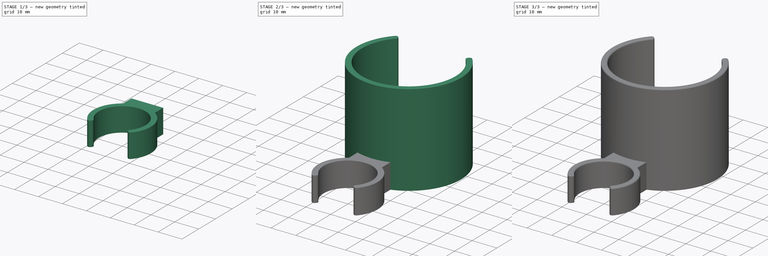
[diagram: build sequence overview — one tinted view per stage of 3, left to right]
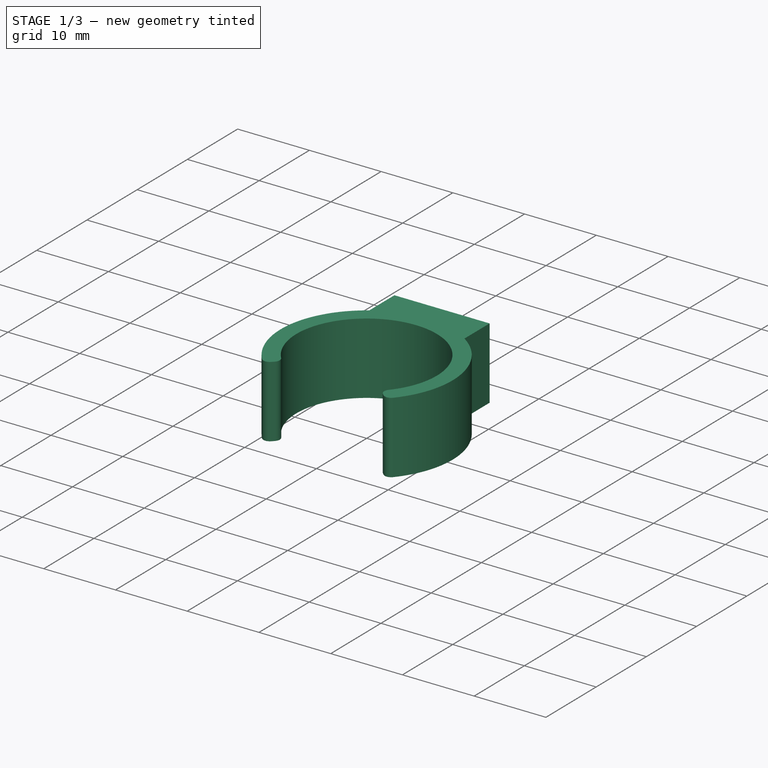
[diagram: stage 1 of 3 — iso view after this stage's code; geometry added in this stage tinted green]
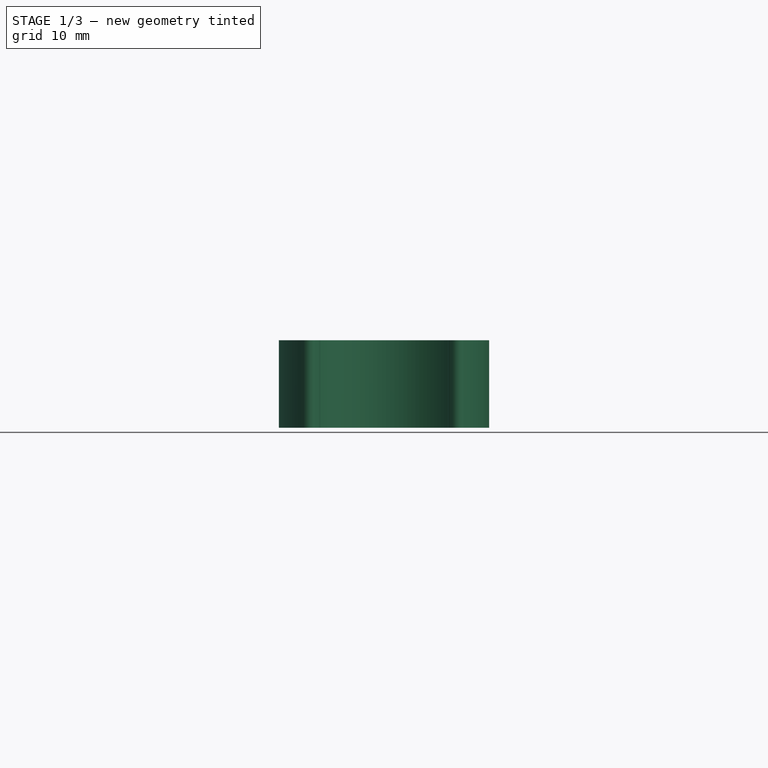
[diagram: stage 1 of 3 — front view after this stage's code; geometry added in this stage tinted green]
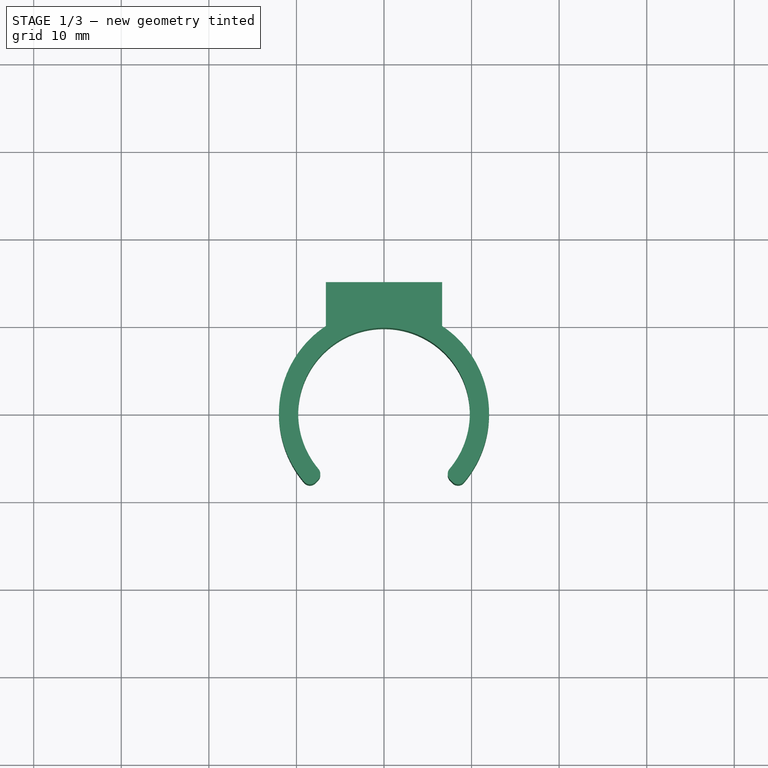
[diagram: stage 1 of 3 — top view after this stage's code; geometry added in this stage tinted green]
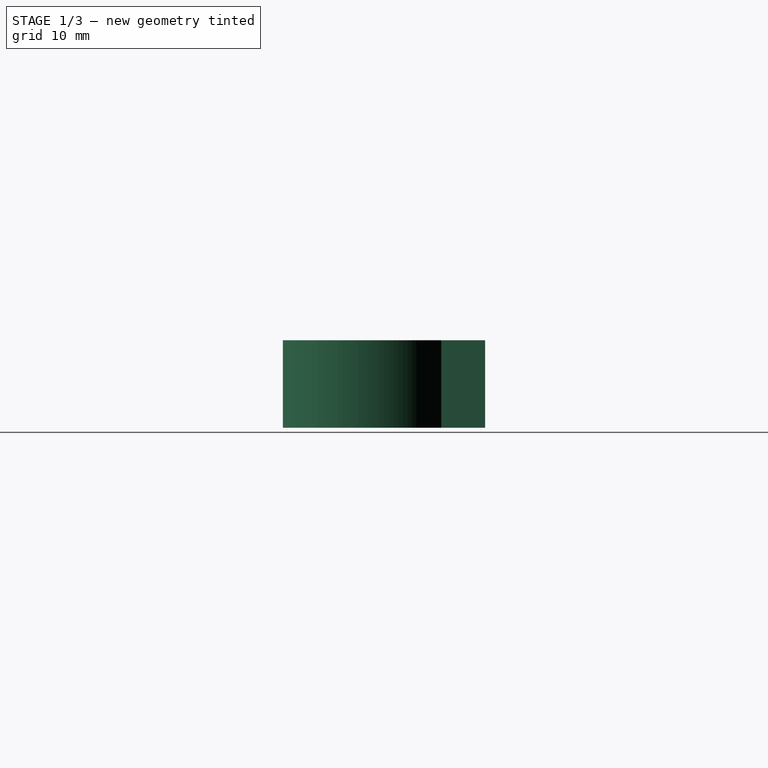
[diagram: stage 1 of 3 — right view after this stage's code; geometry added in this stage tinted green]
FCSTD DOCUMENT  (FreeCAD 0.19R24276 (Git))
Label: Halter1_mitRundungen
License: All rights reserved
LicenseURL: http://en.wikipedia.org/wiki/All_rights_reserved
objects: Sketcher::SketchObject×4, PartDesign::Pad×4, PartDesign::Fillet×1, PartDesign::Body×1
note: 15 computed .brp shape members not serialized (recipe doc carries the construction recipe); baked Part::Feature solids carry a one-line shape summary decoded from their .brp

FEATURE [Sketcher::SketchObject] Sketch
  FullyConstrained = true
  MapMode = 5
  Support = -> [XY_Plane]
  sketch-geometry (10):
    g0: LineSegment StartX=0 StartY=0 StartZ=0 EndX=-8.48528 EndY=-8.48528 EndZ=0
    g1: LineSegment StartX=0 StartY=0 StartZ=0 EndX=8.48528 EndY=-8.48528 EndZ=0
    g2: ArcOfCircle CenterX=0 CenterY=0 CenterZ=0 NormalX=0 NormalY=0 NormalZ=1 AngleXU=0 Radius=9.8 StartAngle=5.582 EndAngle=10.126
    g3: ArcOfCircle CenterX=0 CenterY=0 CenterZ=0 NormalX=0 NormalY=0 NormalZ=1 AngleXU=0 Radius=12 StartAngle=5.57896 EndAngle=10.129
    g4: LineSegment StartX=-7.82304 StartY=-7.82304 StartZ=0 EndX=-7.53923 EndY=-7.53923 EndZ=0
    g5: LineSegment StartX=7.53923 StartY=-7.53923 StartZ=0 EndX=7.82304 EndY=-7.82304 EndZ=0
    g6: ArcOfCircle CenterX=8.45944 CenterY=-7.18665 CenterZ=0 NormalX=0 NormalY=0 NormalZ=1 AngleXU=0 Radius=0.9 StartAngle=3.92699 EndAngle=5.57896
    g7: ArcOfCircle CenterX=8.17563 CenterY=-6.90283 CenterZ=0 NormalX=0 NormalY=0 NormalZ=1 AngleXU=0 Radius=0.9 StartAngle=2.44041 EndAngle=3.92699
    g8: ArcOfCircle CenterX=-8.17563 CenterY=-6.90283 CenterZ=0 NormalX=0 NormalY=0 NormalZ=1 AngleXU=0 Radius=0.9 StartAngle=5.49779 EndAngle=6.98437
    g9: ArcOfCircle CenterX=-8.45944 CenterY=-7.18665 CenterZ=0 NormalX=0 NormalY=0 NormalZ=1 AngleXU=0 Radius=0.9 StartAngle=3.84582 EndAngle=5.49779
  constraints (26):
    c: Distance(g1) = 12
    c: Distance(g0) = 12
    c: Angle(g0,g1) = 1.5708
    c: Angle(g1,g-1) = 0.785398
    c: Radius(g2) = 9.8
    c: Coincident(g3,g-1)
    c: Radius(g3) = 12
    c: Coincident(g2,g0)
    c: Coincident(g2,g1)
    c: Coincident(g2,g3)
    c: Tangent(g5,g6) = -1.5708
    c: Tangent(g3,g6) = -1.5708
    c: Tangent(g2,g7) = 1.5708
    c: Tangent(g5,g7) = -1.5708
    c: Radius(g6) = 0.9
    c: Equal(g6,g7)
    c: Perpendicular(g3,g5)
    c: PointOnObject(g5,g1)
    c: Tangent(g2,g8) = 1.5708
    c: Tangent(g4,g8) = -1.5708
    c: Tangent(g3,g9) = -1.5708
    c: Tangent(g4,g9) = -1.5708
    c: Equal(g7,g8)
    c: Equal(g7,g9)
    c: Perpendicular(g3,g4)
    c: PointOnObject(g4,g0)
FEATURE [PartDesign::Pad] Pad
  Direction = (1,1,1)
  Length = 10
  Length2 = 100
  Profile = -> Sketch
  Type = 0
FEATURE [Sketcher::SketchObject] Sketch001
  ExternalGeometry = -> [Pad]
  FullyConstrained = true
  MapMode = 5
  Support = -> [XY_Plane]
  sketch-geometry (5):
    g0: LineSegment StartX=-6.63325 StartY=15 StartZ=0 EndX=6.63325 EndY=15 EndZ=0
    g1: LineSegment StartX=6.63325 StartY=15 StartZ=0 EndX=6.63325 EndY=10 EndZ=0
    g2: LineSegment StartX=-6.63325 StartY=10 StartZ=0 EndX=-6.63325 EndY=15 EndZ=0
    g3: ArcOfCircle CenterX=0 CenterY=0 CenterZ=0 NormalX=0 NormalY=0 NormalZ=1 AngleXU=0 Radius=12 StartAngle=0.985111 EndAngle=2.15648
    g4: LineSegment StartX=0 StartY=12 StartZ=0 EndX=0 EndY=15 EndZ=0
  constraints (16):
    c: Coincident(g0,g1)
    c: Coincident(g2,g0)
    c: Horizontal(g0)
    c: Vertical(g1)
    c: Vertical(g2)
    c: DistanceY(g1,g1) = 5
    c: Coincident(g3,g-1)
    c: Coincident(g3,g2)
    c: Coincident(g3,g1)
    c: Equal(g1,g2)
    c: PointOnObject(g4,g3)
    c: PointOnObject(g4,g0)
    c: Vertical(g4)
    c: DistanceY(g4,g4) = 3
    c: PointOnObject(g4,g-2)
    c: PointOnObject(g4,g-3)
FEATURE [PartDesign::Pad] Pad001
  BaseFeature = -> Pad
  Direction = (1,1,1)
  Length = 10
  Length2 = 100
  Profile = -> Sketch001
  Type = 0
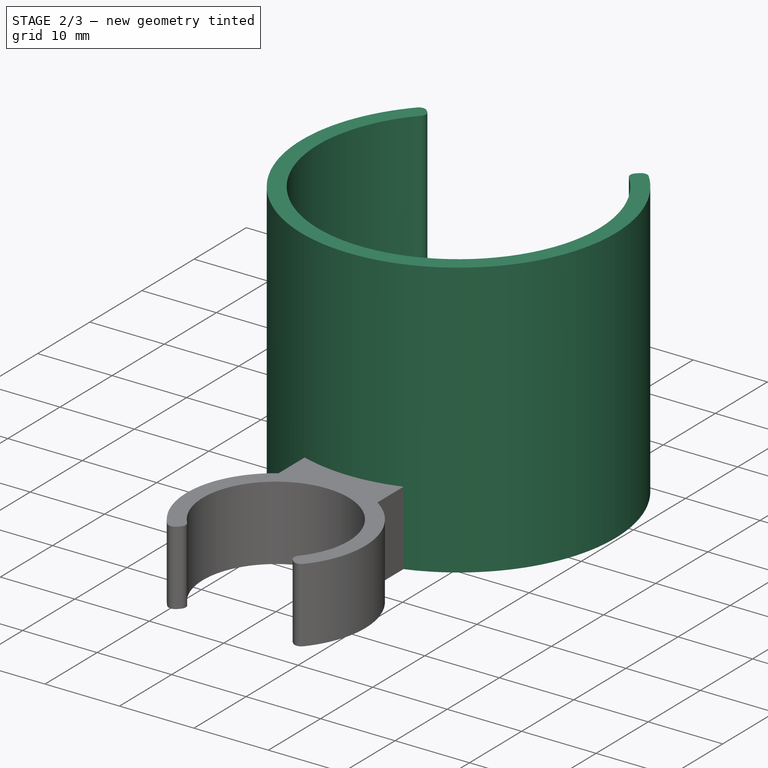
[diagram: stage 2 of 3 — iso view after this stage's code; geometry added in this stage tinted green]
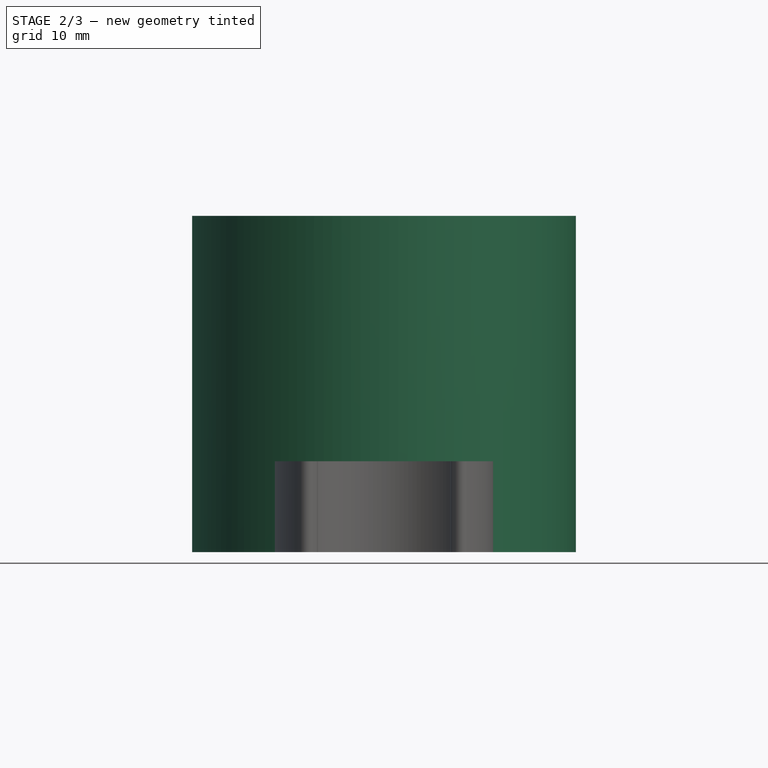
[diagram: stage 2 of 3 — front view after this stage's code; geometry added in this stage tinted green]
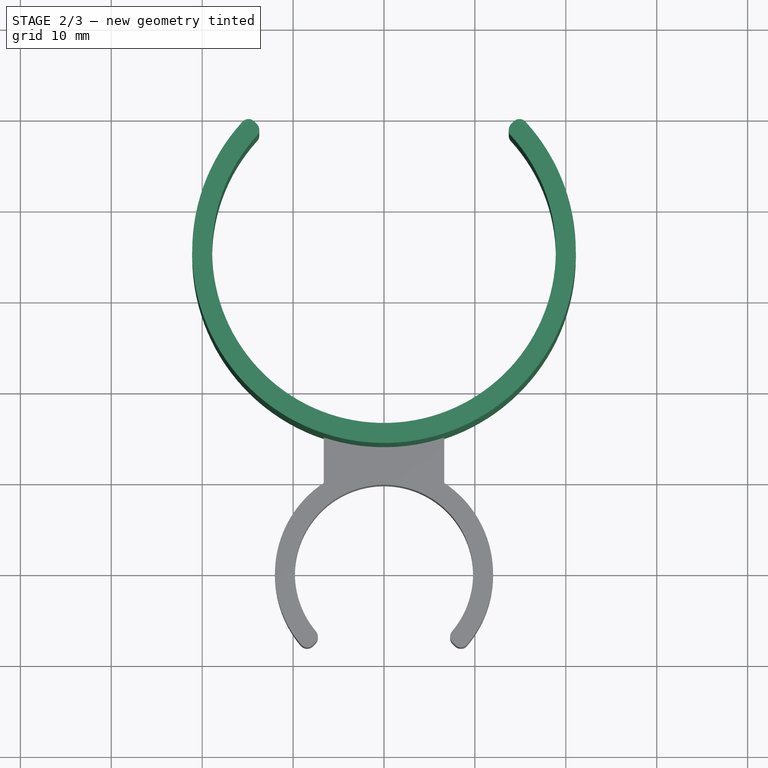
[diagram: stage 2 of 3 — top view after this stage's code; geometry added in this stage tinted green]
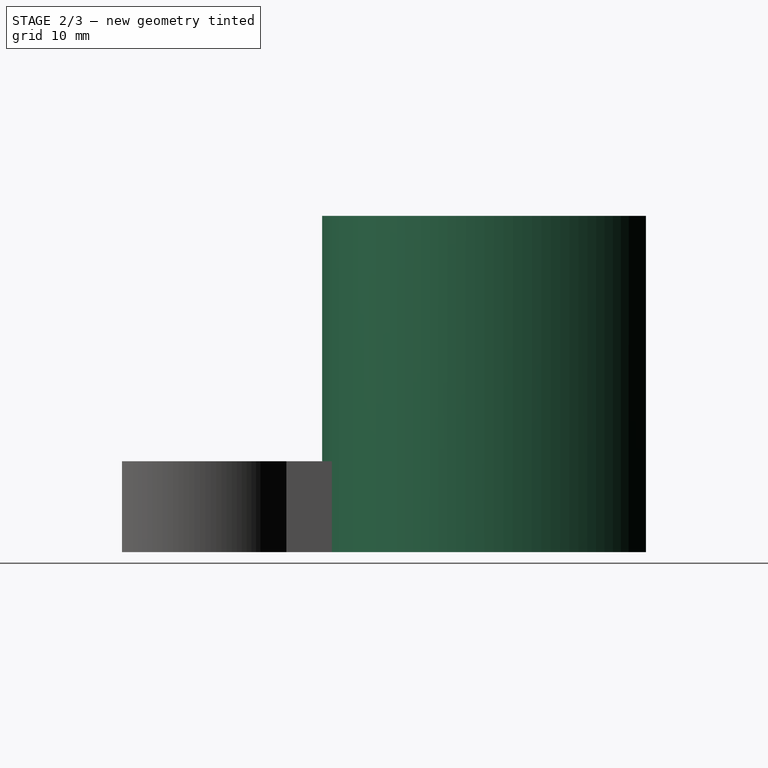
[diagram: stage 2 of 3 — right view after this stage's code; geometry added in this stage tinted green]
FEATURE [Sketcher::SketchObject] Sketch002
  ExternalGeometry = -> [Pad001]
  FullyConstrained = true
  MapMode = 5
  Support = -> [XY_Plane]
  expr: Constraints[6] = 42.2 / 2
  expr: Constraints[2] = 180 - 45
  sketch-geometry (10):
    g0: LineSegment StartX=0 StartY=35.0302 StartZ=0 EndX=14.92 EndY=49.9502 EndZ=0
    g1: LineSegment StartX=0 StartY=35.0302 StartZ=0 EndX=-14.92 EndY=49.9502 EndZ=0
    g2: ArcOfCircle CenterX=0 CenterY=35.0302 CenterZ=0 NormalX=0 NormalY=0 NormalZ=1 AngleXU=0 Radius=18.9 StartAngle=2.40166 EndAngle=7.02311
    g3: ArcOfCircle CenterX=0 CenterY=35.0302 CenterZ=0 NormalX=0 NormalY=0 NormalZ=1 AngleXU=0 Radius=21.1 StartAngle=2.40076 EndAngle=7.02401
    g4: LineSegment StartX=13.9862 StartY=49.0165 StartZ=0 EndX=14.2694 EndY=49.2996 EndZ=0
    g5: LineSegment StartX=-14.2694 StartY=49.2996 StartZ=0 EndX=-13.9862 EndY=49.0165 EndZ=0
    g6: ArcOfCircle CenterX=-14.9058 CenterY=48.6632 CenterZ=0 NormalX=0 NormalY=0 NormalZ=1 AngleXU=0 Radius=0.9 StartAngle=0.785398 EndAngle=2.40076
    g7: ArcOfCircle CenterX=-14.6226 CenterY=48.3801 CenterZ=0 NormalX=0 NormalY=0 NormalZ=1 AngleXU=0 Radius=0.9 StartAngle=5.54326 EndAngle=7.06858
    g8: ArcOfCircle CenterX=14.6226 CenterY=48.3801 CenterZ=0 NormalX=0 NormalY=0 NormalZ=1 AngleXU=0 Radius=0.9 StartAngle=2.35619 EndAngle=3.88152
    g9: ArcOfCircle CenterX=14.9058 CenterY=48.6632 CenterZ=0 NormalX=0 NormalY=0 NormalZ=1 AngleXU=0 Radius=0.9 StartAngle=0.740829 EndAngle=2.35619
  constraints (27):
    c: Coincident(g0,g1)
    c: Angle(g0,g1) = 1.5708
    c: Angle(g-2,g0) = 2.35619
    c: Diameter(g2) = 37.8
    c: Coincident(g3,g2)
    c: Diameter(g3) = 42.2
    c: Distance(g0) = 21.1
    c: Distance(g1) = 21.1
    c: Coincident(g0,g2)
    c: Tangent(g3,g6) = -1.5708
    c: Tangent(g5,g6) = 1.5708
    c: Tangent(g2,g7) = 1.5708
    c: Tangent(g5,g7) = 1.5708
    c: Tangent(g2,g8) = 1.5708
    c: Tangent(g4,g8) = 1.5708
    c: Tangent(g4,g9) = 1.5708
    c: Tangent(g3,g9) = -1.5708
    c: Radius(g9) = 0.9
    c: Equal(g9,g8)
    c: Perpendicular(g3,g4)
    c: PointOnObject(g4,g0)
    c: Equal(g9,g7)
    c: Equal(g9,g6)
    c: PointOnObject(g5,g1)
    c: Perpendicular(g3,g5)
    c: PointOnObject(g-7,g3)
    c: PointOnObject(g2,g-2)
FEATURE [PartDesign::Pad] Pad002
  BaseFeature = -> Pad001
  Direction = (1,1,1)
  Length = 37
  Length2 = 100
  Profile = -> Sketch002
  Type = 0
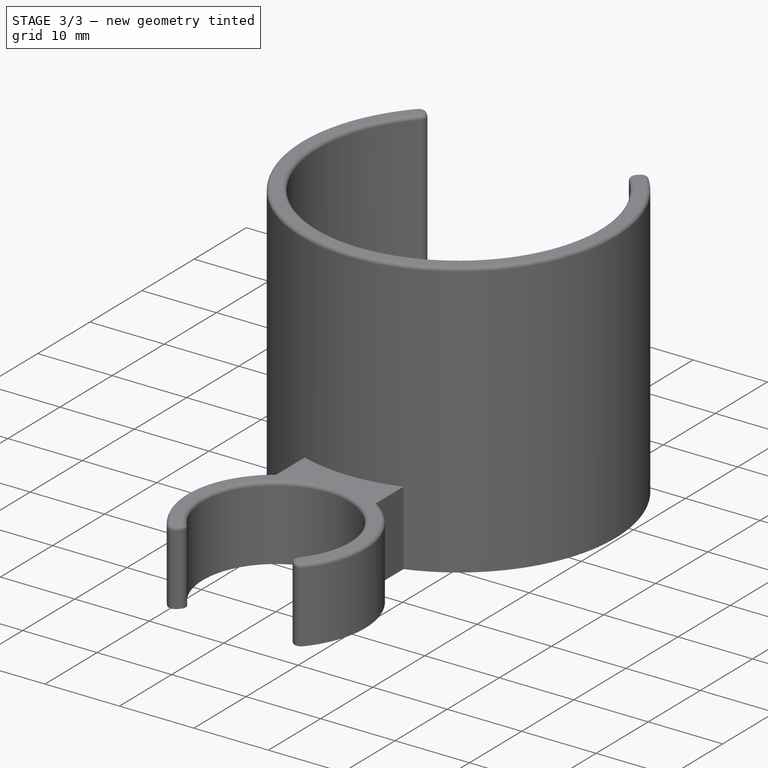
[diagram: stage 3 of 3 — iso view after this stage's code; geometry added in this stage tinted green]
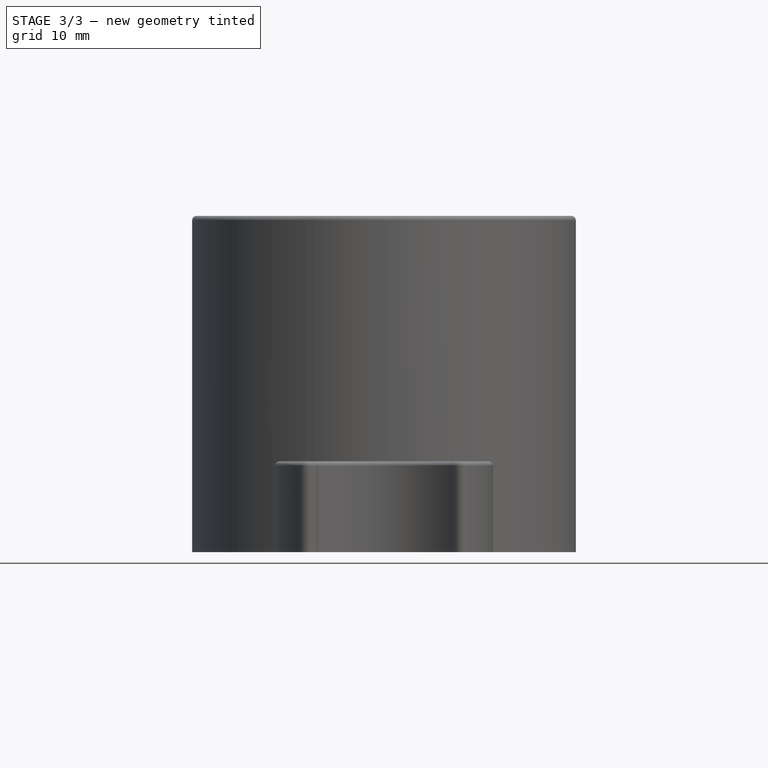
[diagram: stage 3 of 3 — front view after this stage's code; geometry added in this stage tinted green]
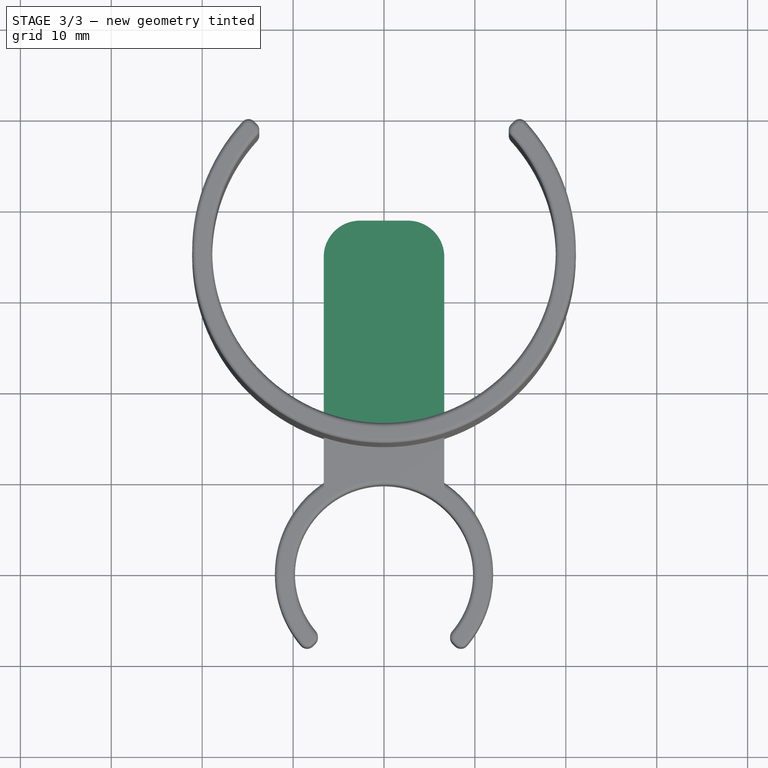
[diagram: stage 3 of 3 — top view after this stage's code; geometry added in this stage tinted green]
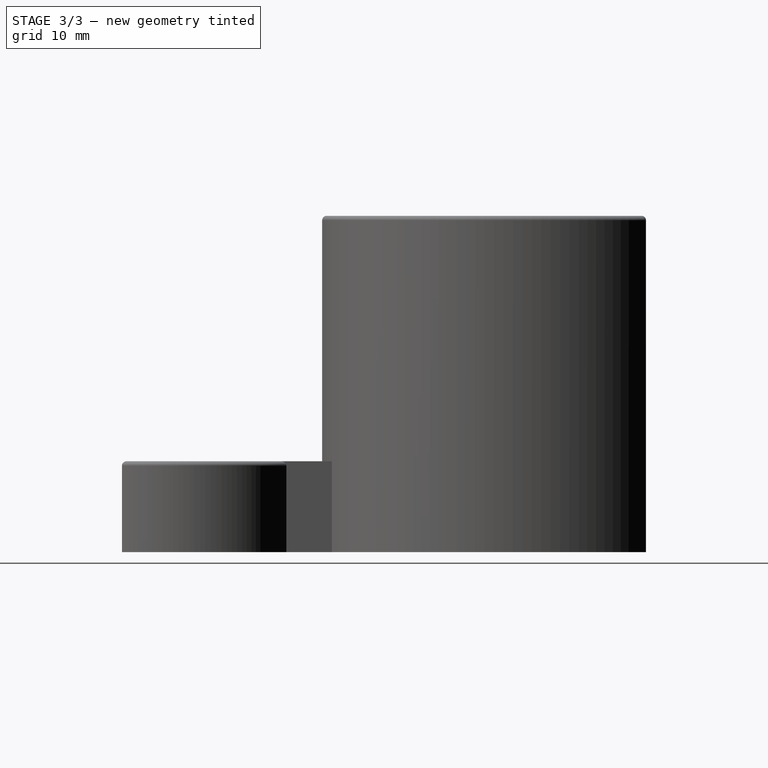
[diagram: stage 3 of 3 — right view after this stage's code; geometry added in this stage tinted green]
FEATURE [Sketcher::SketchObject] Sketch003
  ExternalGeometry = -> [Pad002]
  FullyConstrained = true
  MapMode = 5
  Support = -> [XY_Plane]
  sketch-geometry (6):
    g0: LineSegment StartX=6.63325 StartY=15 StartZ=0 EndX=6.63325 EndY=35 EndZ=0
    g1: LineSegment StartX=2.63325 StartY=39 StartZ=0 EndX=-2.63325 EndY=39 EndZ=0
    g2: LineSegment StartX=-6.63325 StartY=35 StartZ=0 EndX=-6.63325 EndY=15 EndZ=0
    g3: ArcOfCircle CenterX=2.63325 CenterY=35 CenterZ=0 NormalX=0 NormalY=0 NormalZ=1 AngleXU=0 Radius=4 StartAngle=0 EndAngle=1.5708
    g4: ArcOfCircle CenterX=-2.63325 CenterY=35 CenterZ=0 NormalX=0 NormalY=0 NormalZ=1 AngleXU=0 Radius=4 StartAngle=1.5708 EndAngle=3.14159
    g5: LineSegment StartX=-6.63325 StartY=15 StartZ=0 EndX=6.63325 EndY=15 EndZ=0
  constraints (14):
    c: Horizontal(g1)
    c: Vertical(g0)
    c: Vertical(g2)
    c: Tangent(g1,g3) = -1.5708
    c: Tangent(g0,g3) = -1.5708
    c: Tangent(g1,g4) = -1.5708
    c: Tangent(g2,g4) = -1.5708
    c: Radius(g3) = 4
    c: Equal(g3,g4)
    c: DistanceY(g0,g0) = 20
    c: Coincident(g0,g-4)
    c: Coincident(g2,g-3)
    c: Coincident(g5,g2)
    c: Coincident(g5,g0)
FEATURE [PartDesign::Pad] Pad003
  BaseFeature = -> Pad002
  Direction = (1,1,1)
  Length = 2
  Length2 = 100
  Profile = -> Sketch003
  Type = 0
FEATURE [PartDesign::Fillet] Fillet
  Base = -> Pad003 [Edge7,Edge21,Edge23,Edge45,Edge62]
  BaseFeature = -> Pad003
  Radius = 0.5
  SupportTransform = false
FEATURE [PartDesign::Body] Body
  Group = -> [Sketch,Pad,Sketch001,Pad001,Sketch002,Pad002,Sketch003,Pad003,Fillet]
  Origin = -> Origin
  Tip = -> Fillet
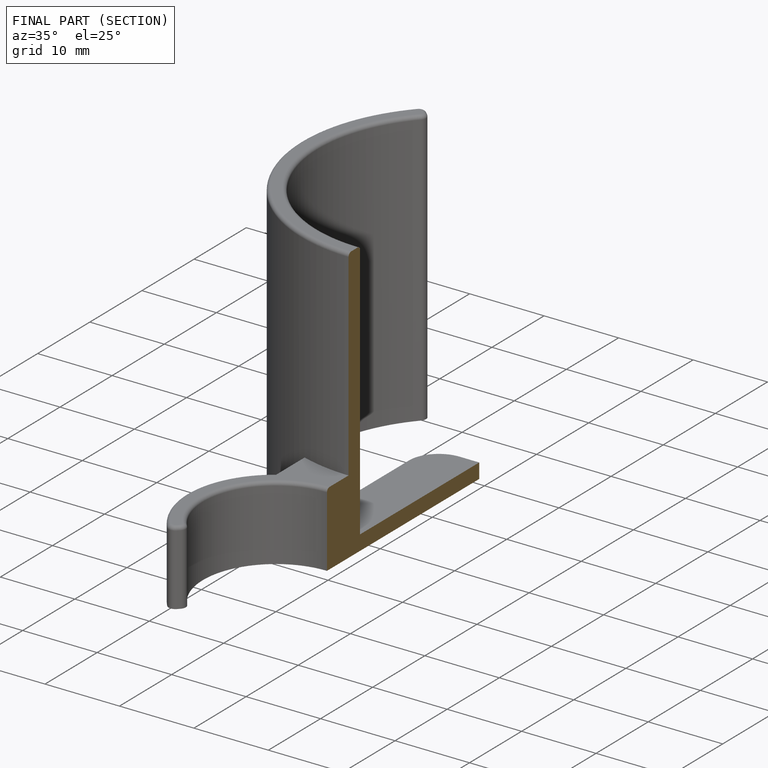
[diagram: finished part — half-section view (interior)]
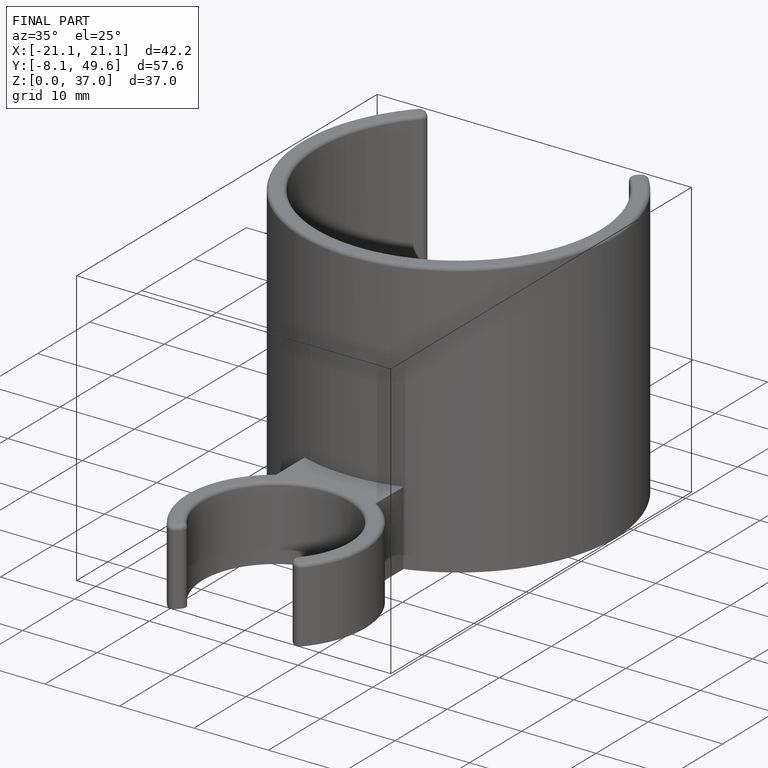
[diagram: finished part — iso view with bounding-box wireframe]
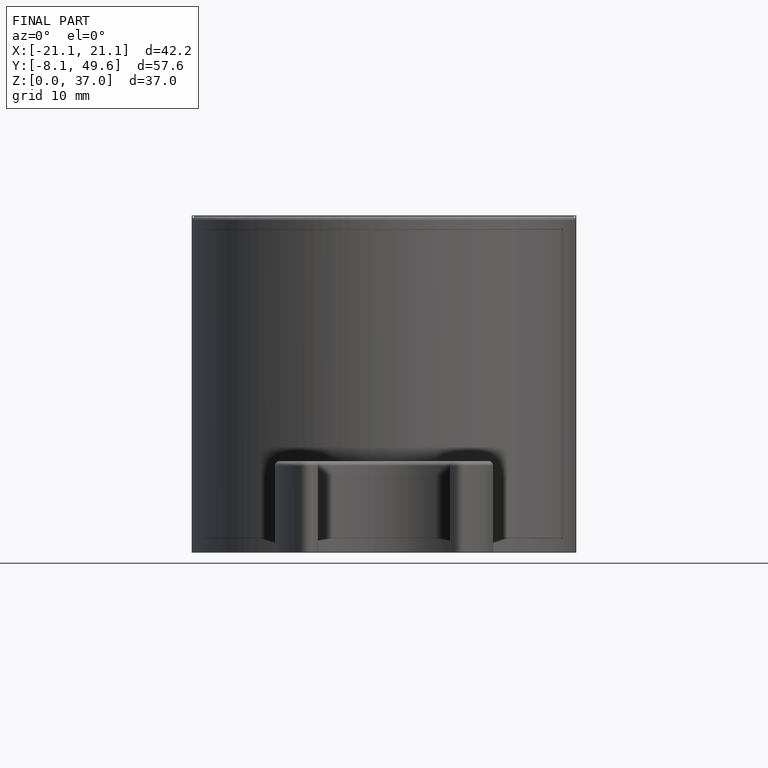
[diagram: finished part — front view with bounding-box wireframe]
